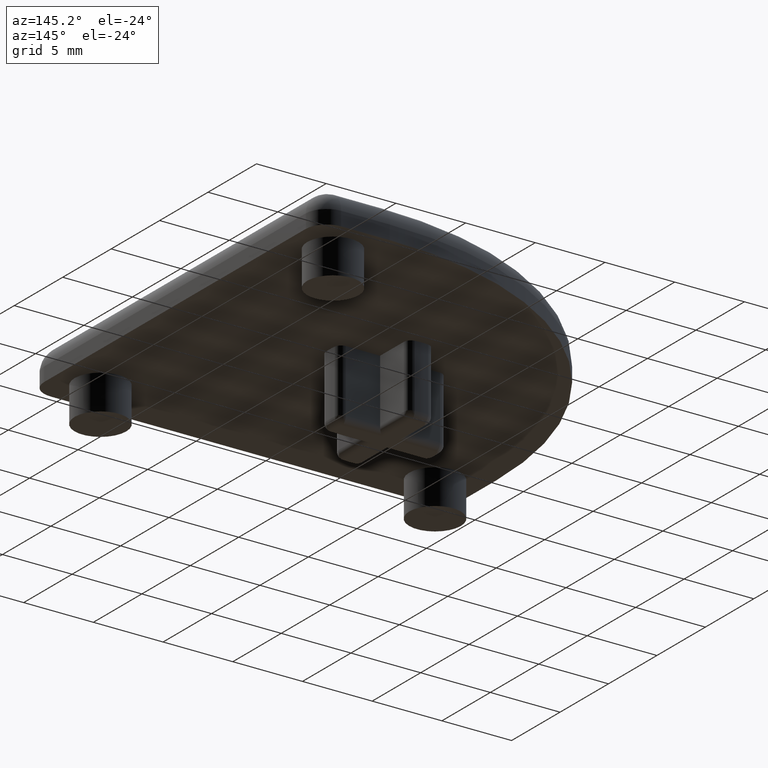
[diagram: clean part render]
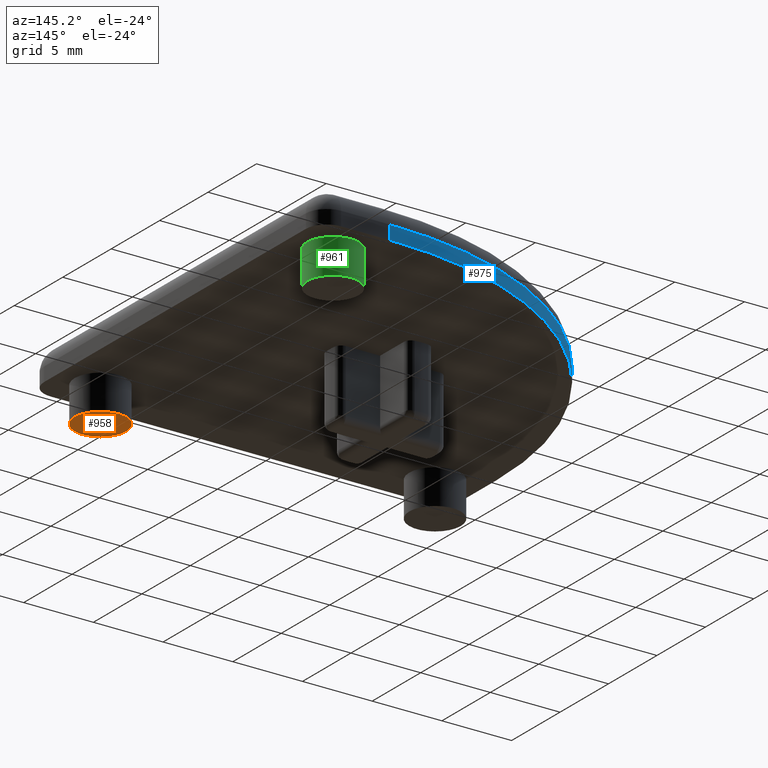
[diagram: same view with three faces highlighted in distinct colors, each labeled with its STEP entity id]
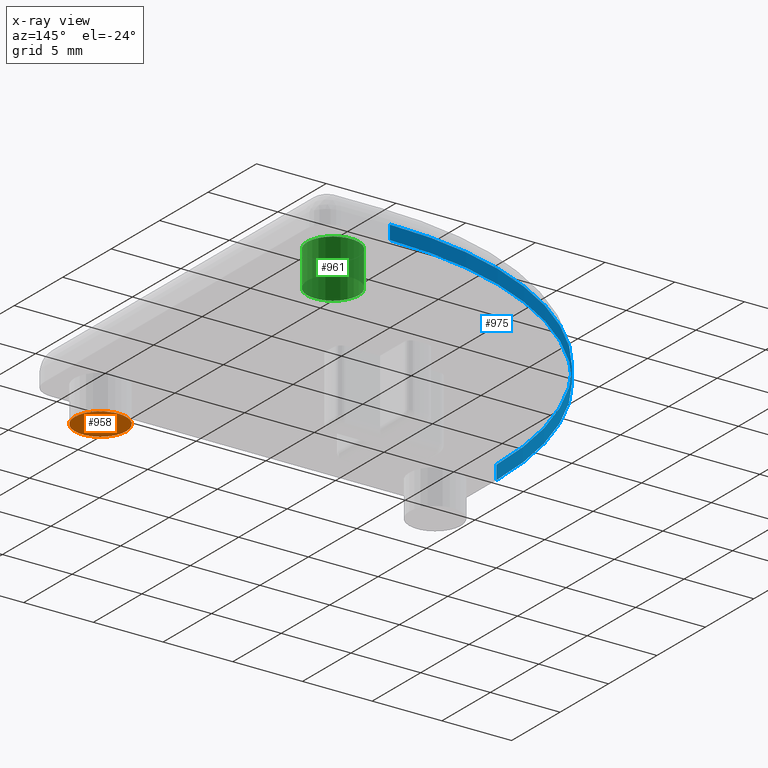
[diagram: x-ray of the same camera — body ghosted, the three highlighted faces saturated]
A machine part, auxiliary view with three faces highlighted in distinct colors.
The next image is the same camera in x-ray (body ghosted, the three faces saturated) — at least one of them is partly hidden behind the body in this view.
Their STEP definitions:

[orange] entity #958 — the highlighted planar face has unit normal (0, 0, 1).
#28=PLANE('',#1093);
#253=FACE_OUTER_BOUND('',#318,.T.);
#318=EDGE_LOOP('',(#797));
#389=CIRCLE('',#1091,1.85);
#464=VERTEX_POINT('',#1665);
#583=EDGE_CURVE('',#464,#464,#389,.T.);
#797=ORIENTED_EDGE('',*,*,#583,.T.);
#958=ADVANCED_FACE('',(#253),#28,.F.);
#1091=AXIS2_PLACEMENT_3D('',#1666,#1363,#1364);
#1093=AXIS2_PLACEMENT_3D('',#1670,#1368,#1369);
#1363=DIRECTION('center_axis',(0.,0.,-1.));
#1364=DIRECTION('ref_axis',(1.,0.,0.));
#1368=DIRECTION('center_axis',(0.,0.,1.));
#1369=DIRECTION('ref_axis',(1.,0.,0.));
#1665=CARTESIAN_POINT('',(10.15,-12.,-2.5));
#1666=CARTESIAN_POINT('Origin',(12.,-12.,-2.5));
#1670=CARTESIAN_POINT('Origin',(12.,-12.,-2.5));

[blue] entity #975 — the highlighted cylindrical surface (partial cylindrical patch) has radius 25 mm, axis along (0, 0, 1).
#107=LINE('',#1747,#174);
#109=LINE('',#1751,#176);
#174=VECTOR('',#1458,10.);
#176=VECTOR('',#1462,10.);
#210=CYLINDRICAL_SURFACE('',#1130,25.);
#270=FACE_OUTER_BOUND('',#335,.T.);
#335=EDGE_LOOP('',(#853,#854,#855,#856));
#410=CIRCLE('',#1126,25.);
#411=CIRCLE('',#1131,25.);
#485=VERTEX_POINT('',#1728);
#487=VERTEX_POINT('',#1734);
#489=VERTEX_POINT('',#1746);
#490=VERTEX_POINT('',#1750);
#617=EDGE_CURVE('',#485,#487,#410,.T.);
#622=EDGE_CURVE('',#489,#487,#107,.T.);
#624=EDGE_CURVE('',#490,#485,#109,.T.);
#625=EDGE_CURVE('',#489,#490,#411,.T.);
#853=ORIENTED_EDGE('',*,*,#617,.F.);
#854=ORIENTED_EDGE('',*,*,#624,.F.);
#855=ORIENTED_EDGE('',*,*,#625,.F.);
#856=ORIENTED_EDGE('',*,*,#622,.T.);
#975=ADVANCED_FACE('',(#270),#210,.T.);
#1126=AXIS2_PLACEMENT_3D('',#1738,#1446,#1447);
#1130=AXIS2_PLACEMENT_3D('',#1749,#1460,#1461);
#1131=AXIS2_PLACEMENT_3D('',#1752,#1463,#1464);
#1446=DIRECTION('center_axis',(0.,0.,1.));
#1447=DIRECTION('ref_axis',(-0.707106781186548,0.707106781186547,0.));
#1458=DIRECTION('',(0.,0.,1.));
#1460=DIRECTION('center_axis',(0.,0.,1.));
#1461=DIRECTION('ref_axis',(3.10862446895044E-16,-1.,0.));
#1462=DIRECTION('',(0.,0.,1.));
#1463=DIRECTION('center_axis',(0.,0.,-1.));
#1464=DIRECTION('ref_axis',(3.10862446895044E-16,-1.,0.));
#1728=CARTESIAN_POINT('',(9.99999999999999,15.,1.));
#1734=CARTESIAN_POINT('',(-15.,-10.,1.));
#1738=CARTESIAN_POINT('Origin',(10.,-10.,1.));
#1746=CARTESIAN_POINT('',(-15.,-10.,0.));
#1747=CARTESIAN_POINT('',(-15.,-10.,0.));
#1749=CARTESIAN_POINT('Origin',(10.,-10.,0.));
#1750=CARTESIAN_POINT('',(9.99999999999999,15.,0.));
#1751=CARTESIAN_POINT('',(9.99999999999999,15.,0.));
#1752=CARTESIAN_POINT('Origin',(10.,-10.,0.));

[green] entity #961 — the highlighted cylindrical surface (bore or boss wall) has radius 1.85 mm, axis along (0, 0, -1).
#92=LINE('',#1682,#159);
#159=VECTOR('',#1383,1.85);
#202=CYLINDRICAL_SURFACE('',#1098,1.85);
#256=FACE_OUTER_BOUND('',#321,.T.);
#321=EDGE_LOOP('',(#803,#804,#805,#806));
#393=CIRCLE('',#1099,1.85);
#394=CIRCLE('',#1100,1.85);
#468=VERTEX_POINT('',#1679);
#469=VERTEX_POINT('',#1681);
#589=EDGE_CURVE('',#468,#468,#393,.T.);
#590=EDGE_CURVE('',#468,#469,#92,.T.);
#591=EDGE_CURVE('',#469,#469,#394,.T.);
#803=ORIENTED_EDGE('',*,*,#589,.F.);
#804=ORIENTED_EDGE('',*,*,#590,.T.);
#805=ORIENTED_EDGE('',*,*,#591,.F.);
#806=ORIENTED_EDGE('',*,*,#590,.F.);
#961=ADVANCED_FACE('',(#256),#202,.T.);
#1098=AXIS2_PLACEMENT_3D('',#1678,#1379,#1380);
#1099=AXIS2_PLACEMENT_3D('',#1680,#1381,#1382);
#1100=AXIS2_PLACEMENT_3D('',#1683,#1384,#1385);
#1379=DIRECTION('center_axis',(0.,0.,-1.));
#1380=DIRECTION('ref_axis',(1.,0.,0.));
#1381=DIRECTION('center_axis',(0.,0.,-1.));
#1382=DIRECTION('ref_axis',(1.,0.,0.));
#1383=DIRECTION('',(0.,0.,1.));
#1384=DIRECTION('center_axis',(0.,0.,1.));
#1385=DIRECTION('ref_axis',(1.,0.,0.));
#1678=CARTESIAN_POINT('Origin',(12.,12.,0.));
#1679=CARTESIAN_POINT('',(10.15,12.,-2.5));
#1680=CARTESIAN_POINT('Origin',(12.,12.,-2.5));
#1681=CARTESIAN_POINT('',(10.15,12.,0.));
#1682=CARTESIAN_POINT('',(10.15,12.,0.));
#1683=CARTESIAN_POINT('Origin',(12.,12.,0.));